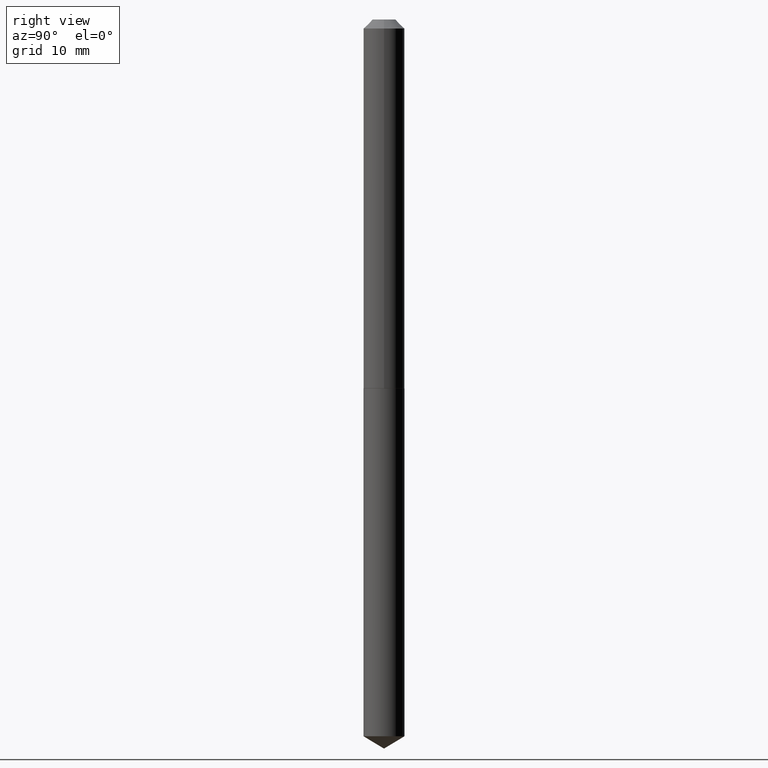
[diagram: clean part render]
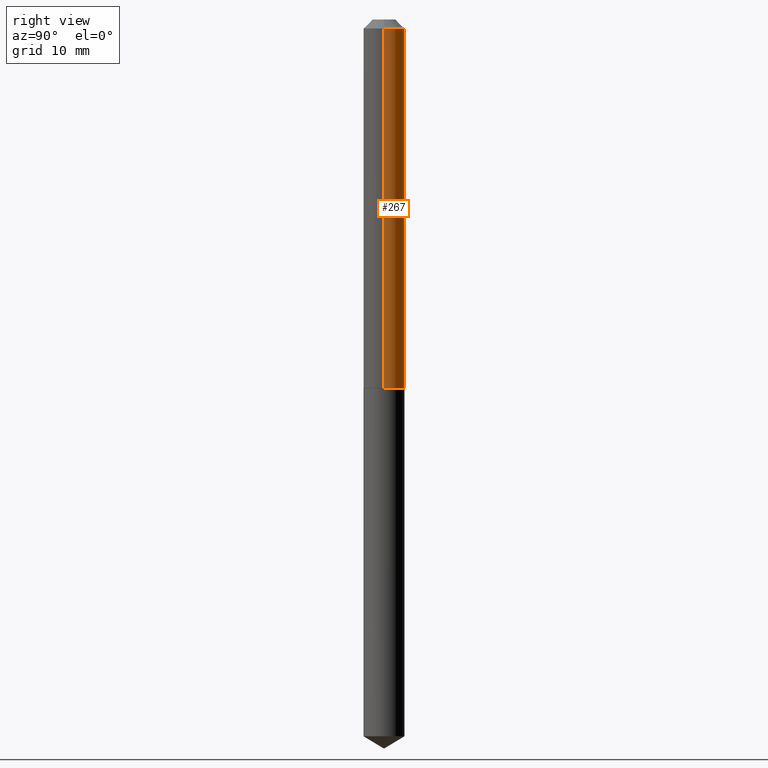
[diagram: same view with one face highlighted and labeled with its STEP entity id]
A machine part, right view. The second image highlights one B-rep face of the part: STEP entity #267.
In plain terms, the highlighted cylindrical surface (edge-blend (fillet) strip) has radius 1.7856 mm, axis along (-0, 0, 1).
Its self-contained STEP definition (entity closure, byte-faithful):
#9 = VERTEX_POINT ( 'NONE', #217 ) ;
#15 = CIRCLE ( 'NONE', #132, 0.07030000000000015403 ) ;
#18 = VERTEX_POINT ( 'NONE', #183 ) ;
#21 = EDGE_CURVE ( 'NONE', #18, #351, #336, .T. ) ;
#31 = CIRCLE ( 'NONE', #258, 0.07030000000000000138 ) ;
#66 = DIRECTION ( 'NONE',  ( -2.445468806185136877E-29, 3.491481338843145188E-15, 1.000000000000000000 ) ) ;
#72 = DIRECTION ( 'NONE',  ( 1.000000000000000000, -6.982962677686268288E-15, 0.000000000000000000 ) ) ;
#75 = DIRECTION ( 'NONE',  ( -2.445468806185136877E-29, 3.491481338843145188E-15, 1.000000000000000000 ) ) ;
#79 = DIRECTION ( 'NONE',  ( 1.000000000000000000, -6.982962677686266711E-15, 4.876176775795936353E-29 ) ) ;
#95 = ORIENTED_EDGE ( 'NONE', *, *, #177, .T. ) ;
#104 = CARTESIAN_POINT ( 'NONE',  ( -0.07030000000000007077, 4.995115432393509335E-16, -3.458011368449202373E-30 ) ) ;
#106 = CARTESIAN_POINT ( 'NONE',  ( 0.000000000000000000, 0.000000000000000000, 0.000000000000000000 ) ) ;
#108 = AXIS2_PLACEMENT_3D ( 'NONE', #106, #112, #79 ) ;
#112 = DIRECTION ( 'NONE',  ( -2.445468806185136597E-29, 3.491481338843145583E-15, 1.000000000000000000 ) ) ;
#121 = ORIENTED_EDGE ( 'NONE', *, *, #21, .F. ) ;
#132 = AXIS2_PLACEMENT_3D ( 'NONE', #370, #344, #285 ) ;
#136 = CYLINDRICAL_SURFACE ( 'NONE', #108, 0.07030000000000007077 ) ;
#138 = EDGE_CURVE ( 'NONE', #351, #9, #31, .T. ) ;
#156 = VECTOR ( 'NONE', #66, 39.37007874015748143 ) ;
#166 = FACE_OUTER_BOUND ( 'NONE', #329, .T. ) ;
#177 = EDGE_CURVE ( 'NONE', #18, #301, #15, .T. ) ;
#183 = CARTESIAN_POINT ( 'NONE',  ( 0.07030000000000015403, -4.907975318011809982E-15, -1.265100000000000335 ) ) ;
#209 = CARTESIAN_POINT ( 'NONE',  ( 0.07030000000000007077, -4.909022762413450459E-16, 3.427952273384546640E-30 ) ) ;
#217 = CARTESIAN_POINT ( 'NONE',  ( -0.07030000000000000138, -1.763579373565305049E-15, -0.03125000000000020817 ) ) ;
#219 = DIRECTION ( 'NONE',  ( -2.445468806185136597E-29, 3.491481338843145583E-15, 1.000000000000000000 ) ) ;
#230 = ORIENTED_EDGE ( 'NONE', *, *, #138, .F. ) ;
#240 = EDGE_CURVE ( 'NONE', #301, #9, #376, .T. ) ;
#258 = AXIS2_PLACEMENT_3D ( 'NONE', #341, #219, #72 ) ;
#263 = VECTOR ( 'NONE', #75, 39.37007874015748143 ) ;
#267 = ADVANCED_FACE ( 'NONE', ( #166 ), #136, .T. ) ;
#268 = CARTESIAN_POINT ( 'NONE',  ( -0.07030000000000015403, -3.917561498531112819E-15, -1.265100000000000335 ) ) ;
#285 = DIRECTION ( 'NONE',  ( 1.000000000000000000, -6.982962677686264344E-15, 0.000000000000000000 ) ) ;
#301 = VERTEX_POINT ( 'NONE', #268 ) ;
#329 = EDGE_LOOP ( 'NONE', ( #95, #355, #230, #121 ) ) ;
#336 = LINE ( 'NONE', #209, #156 ) ;
#341 = CARTESIAN_POINT ( 'NONE',  ( 7.642090019328602662E-31, -1.091087918388490267E-16, -0.03125000000000020817 ) ) ;
#344 = DIRECTION ( 'NONE',  ( -2.445468806185136597E-29, 3.491481338843145583E-15, 1.000000000000000000 ) ) ;
#351 = VERTEX_POINT ( 'NONE', #384 ) ;
#355 = ORIENTED_EDGE ( 'NONE', *, *, #240, .T. ) ;
#370 = CARTESIAN_POINT ( 'NONE',  ( 3.093762586704817409E-29, -4.417073041770464246E-15, -1.265100000000000335 ) ) ;
#376 = LINE ( 'NONE', #104, #263 ) ;
#384 = CARTESIAN_POINT ( 'NONE',  ( 0.07030000000000000138, -6.000110680801936536E-16, -0.03125000000000020817 ) ) ;